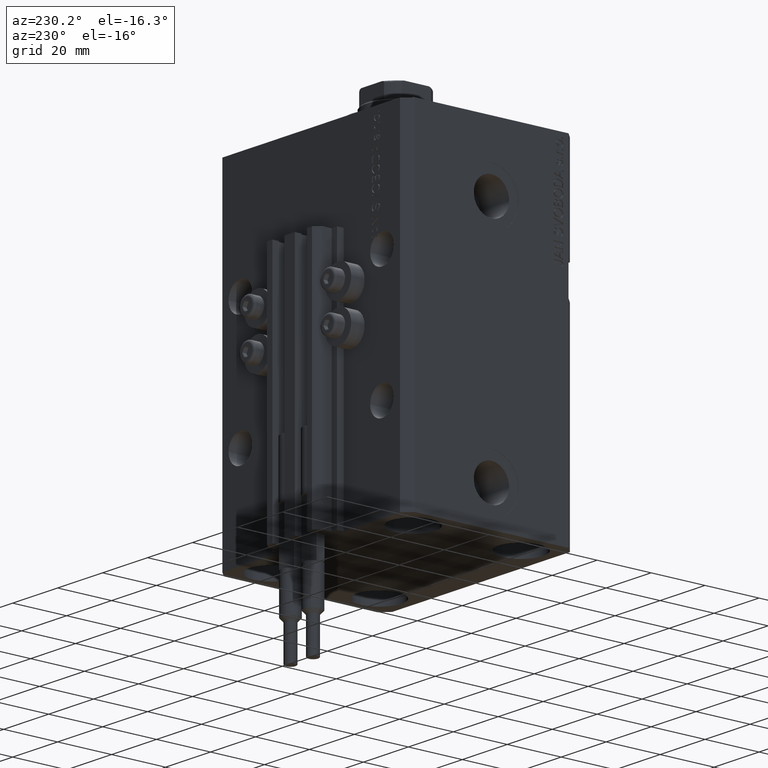
[diagram: clean part render]
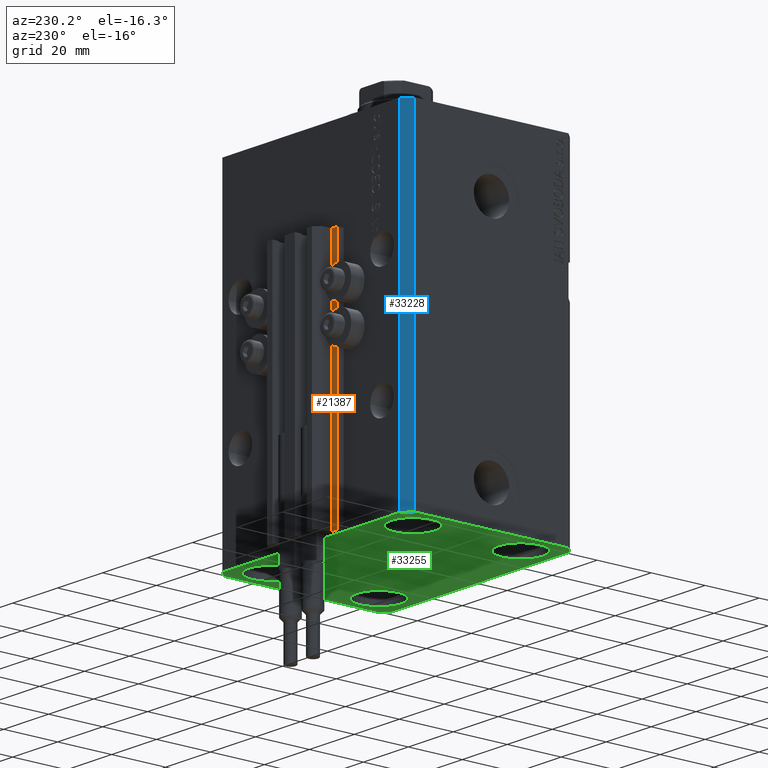
[diagram: same view with three faces highlighted in distinct colors, each labeled with its STEP entity id]
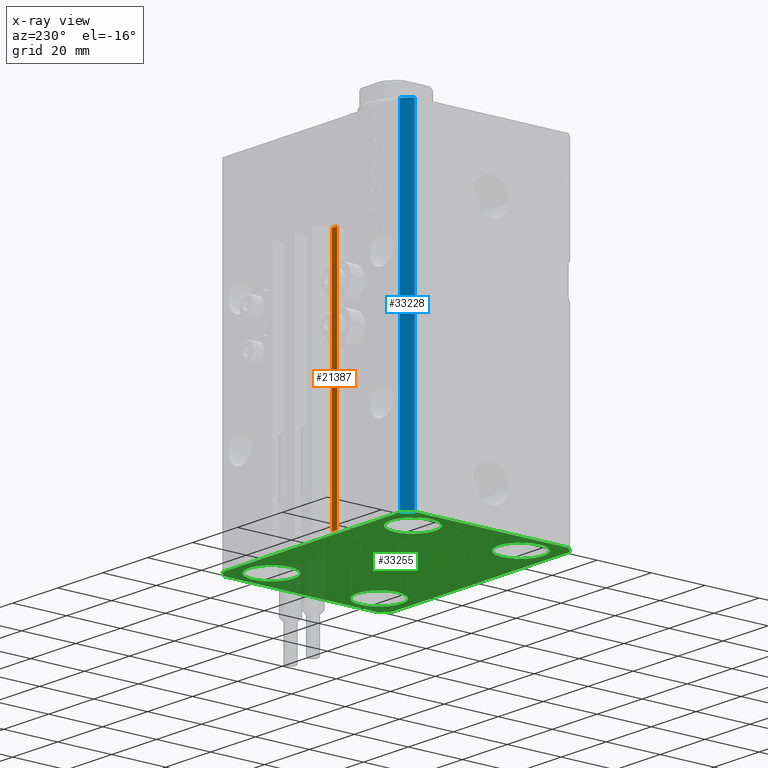
[diagram: x-ray of the same camera — body ghosted, the three highlighted faces saturated]
A machine part, auxiliary view with three faces highlighted in distinct colors.
The next image is the same camera in x-ray (body ghosted, the three faces saturated) — at least one of them is partly hidden behind the body in this view.
Their STEP definitions:

[orange] entity #21387 — the highlighted planar face has unit normal (0, 1, 0).
#175 = VERTEX_POINT ( 'NONE', #34948 ) ;
#1837 = EDGE_CURVE ( 'NONE', #16090, #175, #41770, .T. ) ;
#1938 = PLANE ( 'NONE',  #25567 ) ;
#2292 = EDGE_CURVE ( 'NONE', #23306, #41984, #19715, .T. ) ;
#2499 = ORIENTED_EDGE ( 'NONE', *, *, #2292, .F. ) ;
#4361 = CARTESIAN_POINT ( 'NONE',  ( -12.20000000000000107, 33.99999999999998579, -33.00000000000000000 ) ) ;
#5175 = CARTESIAN_POINT ( 'NONE',  ( -12.20000000000000107, 33.99999999999998579, -33.00000000000000000 ) ) ;
#6557 = LINE ( 'NONE', #9787, #11754 ) ;
#9787 = CARTESIAN_POINT ( 'NONE',  ( -14.50000000000000000, 33.99999999999998579, -123.0000000000000000 ) ) ;
#10140 = EDGE_CURVE ( 'NONE', #175, #41984, #6557, .T. ) ;
#11754 = VECTOR ( 'NONE', #43660, 1000.000000000000000 ) ;
#12622 = CARTESIAN_POINT ( 'NONE',  ( -12.20000000000000107, 33.99999999999998579, -123.0000000000000000 ) ) ;
#16090 = VERTEX_POINT ( 'NONE', #12622 ) ;
#17045 = CARTESIAN_POINT ( 'NONE',  ( -12.20000000000000107, 33.99999999999998579, -123.0000000000000000 ) ) ;
#18900 = ORIENTED_EDGE ( 'NONE', *, *, #1837, .T. ) ;
#19143 = ORIENTED_EDGE ( 'NONE', *, *, #10140, .T. ) ;
#19715 = LINE ( 'NONE', #4361, #21835 ) ;
#20740 = FACE_OUTER_BOUND ( 'NONE', #48741, .T. ) ;
#21221 = DIRECTION ( 'NONE',  ( 0.000000000000000000, 0.000000000000000000, 1.000000000000000000 ) ) ;
#21387 = ADVANCED_FACE ( 'NONE', ( #20740 ), #1938, .T. ) ;
#21835 = VECTOR ( 'NONE', #35036, 1000.000000000000000 ) ;
#22236 = DIRECTION ( 'NONE',  ( -1.000000000000000000, 0.000000000000000000, 0.000000000000000000 ) ) ;
#23306 = VERTEX_POINT ( 'NONE', #5175 ) ;
#25567 = AXIS2_PLACEMENT_3D ( 'NONE', #17045, #47445, #21221 ) ;
#27902 = VECTOR ( 'NONE', #36513, 1000.000000000000000 ) ;
#30682 = EDGE_CURVE ( 'NONE', #16090, #23306, #48138, .T. ) ;
#30865 = CARTESIAN_POINT ( 'NONE',  ( -14.50000000000000000, 33.99999999999998579, -33.00000000000000000 ) ) ;
#33304 = CARTESIAN_POINT ( 'NONE',  ( -12.20000000000000107, 33.99999999999998579, -123.0000000000000000 ) ) ;
#34948 = CARTESIAN_POINT ( 'NONE',  ( -14.50000000000000000, 33.99999999999998579, -123.0000000000000000 ) ) ;
#35036 = DIRECTION ( 'NONE',  ( -1.000000000000000000, 0.000000000000000000, 0.000000000000000000 ) ) ;
#36513 = DIRECTION ( 'NONE',  ( 0.000000000000000000, 0.000000000000000000, 1.000000000000000000 ) ) ;
#37233 = ORIENTED_EDGE ( 'NONE', *, *, #30682, .F. ) ;
#41770 = LINE ( 'NONE', #44751, #45547 ) ;
#41984 = VERTEX_POINT ( 'NONE', #30865 ) ;
#43660 = DIRECTION ( 'NONE',  ( 0.000000000000000000, 0.000000000000000000, 1.000000000000000000 ) ) ;
#44751 = CARTESIAN_POINT ( 'NONE',  ( -12.20000000000000107, 33.99999999999998579, -123.0000000000000000 ) ) ;
#45547 = VECTOR ( 'NONE', #22236, 1000.000000000000000 ) ;
#47445 = DIRECTION ( 'NONE',  ( 0.000000000000000000, 1.000000000000000000, -0.000000000000000000 ) ) ;
#48138 = LINE ( 'NONE', #33304, #27902 ) ;
#48741 = EDGE_LOOP ( 'NONE', ( #2499, #37233, #18900, #19143 ) ) ;

[blue] entity #33228 — the highlighted planar face has unit normal (-0.7071, 0.7071, 0).
#18 = VECTOR ( 'NONE', #8081, 1000.000000000000000 ) ;
#2957 = VERTEX_POINT ( 'NONE', #6198 ) ;
#3219 = DIRECTION ( 'NONE',  ( -0.7071067811865472397, -0.7071067811865479058, 0.000000000000000000 ) ) ;
#4535 = VECTOR ( 'NONE', #24696, 1000.000000000000000 ) ;
#5162 = LINE ( 'NONE', #23962, #4535 ) ;
#6198 = CARTESIAN_POINT ( 'NONE',  ( -42.50000000000000000, 28.50000000000000000, 0.000000000000000000 ) ) ;
#6941 = PLANE ( 'NONE',  #27186 ) ;
#8081 = DIRECTION ( 'NONE',  ( -0.7071067811865471286, -0.7071067811865479058, 0.000000000000000000 ) ) ;
#8192 = LINE ( 'NONE', #19071, #32710 ) ;
#8940 = ORIENTED_EDGE ( 'NONE', *, *, #44019, .F. ) ;
#12512 = VERTEX_POINT ( 'NONE', #46279 ) ;
#14089 = EDGE_CURVE ( 'NONE', #12512, #21358, #46162, .T. ) ;
#14091 = EDGE_CURVE ( 'NONE', #31817, #2957, #45177, .T. ) ;
#17287 = CARTESIAN_POINT ( 'NONE',  ( -42.50000000000000000, 28.50000000000000000, -123.0000000000000000 ) ) ;
#19071 = CARTESIAN_POINT ( 'NONE',  ( -42.50000000000000000, 28.50000000000000000, -123.0000000000000000 ) ) ;
#20564 = VECTOR ( 'NONE', #26868, 1000.000000000000000 ) ;
#21358 = VERTEX_POINT ( 'NONE', #17287 ) ;
#21368 = CARTESIAN_POINT ( 'NONE',  ( -39.50000000000000711, 31.50000000000000000, 0.000000000000000000 ) ) ;
#22500 = FACE_OUTER_BOUND ( 'NONE', #31369, .T. ) ;
#23154 = CARTESIAN_POINT ( 'NONE',  ( -39.50000000000000711, 31.50000000000000000, 0.000000000000000000 ) ) ;
#23962 = CARTESIAN_POINT ( 'NONE',  ( -39.50000000000000711, 31.50000000000000000, -123.0000000000000000 ) ) ;
#24696 = DIRECTION ( 'NONE',  ( 0.000000000000000000, 0.000000000000000000, 1.000000000000000000 ) ) ;
#26868 = DIRECTION ( 'NONE',  ( -0.7071067811865471286, -0.7071067811865479058, 0.000000000000000000 ) ) ;
#27186 = AXIS2_PLACEMENT_3D ( 'NONE', #48492, #33415, #3219 ) ;
#31089 = EDGE_CURVE ( 'NONE', #21358, #2957, #8192, .T. ) ;
#31369 = EDGE_LOOP ( 'NONE', ( #43750, #8940, #40233, #32630 ) ) ;
#31817 = VERTEX_POINT ( 'NONE', #21368 ) ;
#32630 = ORIENTED_EDGE ( 'NONE', *, *, #31089, .T. ) ;
#32710 = VECTOR ( 'NONE', #38840, 1000.000000000000000 ) ;
#33228 = ADVANCED_FACE ( 'NONE', ( #22500 ), #6941, .T. ) ;
#33415 = DIRECTION ( 'NONE',  ( -0.7071067811865479058, 0.7071067811865472397, 0.000000000000000000 ) ) ;
#38840 = DIRECTION ( 'NONE',  ( 0.000000000000000000, 0.000000000000000000, 1.000000000000000000 ) ) ;
#40233 = ORIENTED_EDGE ( 'NONE', *, *, #14089, .T. ) ;
#43750 = ORIENTED_EDGE ( 'NONE', *, *, #14091, .F. ) ;
#44019 = EDGE_CURVE ( 'NONE', #12512, #31817, #5162, .T. ) ;
#45177 = LINE ( 'NONE', #23154, #20564 ) ;
#45666 = CARTESIAN_POINT ( 'NONE',  ( -39.50000000000000711, 31.50000000000000000, -123.0000000000000000 ) ) ;
#46162 = LINE ( 'NONE', #45666, #18 ) ;
#46279 = CARTESIAN_POINT ( 'NONE',  ( -39.50000000000000711, 31.50000000000000000, -123.0000000000000000 ) ) ;
#48492 = CARTESIAN_POINT ( 'NONE',  ( -39.50000000000000711, 31.50000000000000000, -123.0000000000000000 ) ) ;

[green] entity #33255 — the highlighted planar face has unit normal (0, 0, 1).
#18 = VECTOR ( 'NONE', #8081, 1000.000000000000000 ) ;
#596 = CARTESIAN_POINT ( 'NONE',  ( -31.50000000000000000, 20.00000000000000000, -123.0000000000000000 ) ) ;
#1511 = EDGE_CURVE ( 'NONE', #16458, #25079, #34460, .T. ) ;
#1566 = CARTESIAN_POINT ( 'NONE',  ( -31.50000000000000000, 20.00000000000000000, -123.0000000000000000 ) ) ;
#2012 = CARTESIAN_POINT ( 'NONE',  ( -39.75000000000000000, -20.00000000000000000, -123.0000000000000000 ) ) ;
#2696 = EDGE_CURVE ( 'NONE', #35685, #17717, #32948, .T. ) ;
#2762 = ORIENTED_EDGE ( 'NONE', *, *, #14089, .F. ) ;
#2950 = VECTOR ( 'NONE', #7725, 1000.000000000000000 ) ;
#3118 = EDGE_LOOP ( 'NONE', ( #21839, #4889 ) ) ;
#4323 = CARTESIAN_POINT ( 'NONE',  ( 31.50000000000000000, -20.00000000000000000, -123.0000000000000000 ) ) ;
#4399 = EDGE_CURVE ( 'NONE', #14215, #11895, #40200, .T. ) ;
#4889 = ORIENTED_EDGE ( 'NONE', *, *, #2696, .T. ) ;
#5513 = ORIENTED_EDGE ( 'NONE', *, *, #22171, .T. ) ;
#5802 = CARTESIAN_POINT ( 'NONE',  ( -31.50000000000000000, -20.00000000000000000, -123.0000000000000000 ) ) ;
#6477 = EDGE_CURVE ( 'NONE', #24065, #14215, #36447, .T. ) ;
#6526 = DIRECTION ( 'NONE',  ( 0.7071067811865483499, 0.7071067811865466846, 0.000000000000000000 ) ) ;
#6552 = CARTESIAN_POINT ( 'NONE',  ( 31.50000000000000000, 20.00000000000001066, -123.0000000000000000 ) ) ;
#6623 = CARTESIAN_POINT ( 'NONE',  ( -39.50000000000000711, -31.50000000000000000, -123.0000000000000000 ) ) ;
#7250 = CARTESIAN_POINT ( 'NONE',  ( 42.50000000000051870, 28.49999999999995381, -123.0000000000000000 ) ) ;
#7335 = EDGE_CURVE ( 'NONE', #25079, #16458, #43351, .T. ) ;
#7725 = DIRECTION ( 'NONE',  ( 8.886653596232072440E-15, 1.000000000000000000, 0.000000000000000000 ) ) ;
#8081 = DIRECTION ( 'NONE',  ( -0.7071067811865471286, -0.7071067811865479058, 0.000000000000000000 ) ) ;
#8831 = EDGE_CURVE ( 'NONE', #17717, #35685, #41040, .T. ) ;
#9195 = CARTESIAN_POINT ( 'NONE',  ( -39.50000000000000711, -31.50000000000000000, -123.0000000000000000 ) ) ;
#9731 = DIRECTION ( 'NONE',  ( 1.000000000000000000, 0.000000000000000000, 0.000000000000000000 ) ) ;
#10448 = VERTEX_POINT ( 'NONE', #17807 ) ;
#10662 = DIRECTION ( 'NONE',  ( 1.000000000000000000, 0.000000000000000000, -0.000000000000000000 ) ) ;
#11643 = PLANE ( 'NONE',  #28767 ) ;
#11895 = VERTEX_POINT ( 'NONE', #29074 ) ;
#12017 = CARTESIAN_POINT ( 'NONE',  ( 39.50000000000000711, -31.50000000000000000, -123.0000000000000000 ) ) ;
#12176 = CARTESIAN_POINT ( 'NONE',  ( 39.74999999999999289, -20.00000000000000000, -123.0000000000000000 ) ) ;
#12298 = EDGE_CURVE ( 'NONE', #21358, #46213, #44021, .T. ) ;
#12329 = EDGE_LOOP ( 'NONE', ( #36120, #36456 ) ) ;
#12512 = VERTEX_POINT ( 'NONE', #46279 ) ;
#13304 = AXIS2_PLACEMENT_3D ( 'NONE', #596, #41915, #35226 ) ;
#14089 = EDGE_CURVE ( 'NONE', #12512, #21358, #46162, .T. ) ;
#14215 = VERTEX_POINT ( 'NONE', #47849 ) ;
#14377 = CARTESIAN_POINT ( 'NONE',  ( -23.25000000000000000, 20.00000000000000000, -123.0000000000000000 ) ) ;
#14398 = VERTEX_POINT ( 'NONE', #34727 ) ;
#14608 = FACE_BOUND ( 'NONE', #12329, .T. ) ;
#14672 = DIRECTION ( 'NONE',  ( -0.7071067811865356934, 0.7071067811865594521, 0.000000000000000000 ) ) ;
#14894 = VERTEX_POINT ( 'NONE', #6623 ) ;
#15693 = VERTEX_POINT ( 'NONE', #2012 ) ;
#16390 = ORIENTED_EDGE ( 'NONE', *, *, #4399, .F. ) ;
#16458 = VERTEX_POINT ( 'NONE', #28734 ) ;
#16856 = DIRECTION ( 'NONE',  ( -1.000000000000000000, 0.000000000000000000, 0.000000000000000000 ) ) ;
#17287 = CARTESIAN_POINT ( 'NONE',  ( -42.50000000000000000, 28.50000000000000000, -123.0000000000000000 ) ) ;
#17717 = VERTEX_POINT ( 'NONE', #45730 ) ;
#17807 = CARTESIAN_POINT ( 'NONE',  ( 39.50000000000056843, 31.50000000000000000, -123.0000000000000000 ) ) ;
#18070 = FACE_BOUND ( 'NONE', #3118, .T. ) ;
#18351 = ORIENTED_EDGE ( 'NONE', *, *, #43064, .T. ) ;
#19077 = CIRCLE ( 'NONE', #19890, 8.250000000000000000 ) ;
#19283 = DIRECTION ( 'NONE',  ( 1.000000000000000000, 0.000000000000000000, 0.000000000000000000 ) ) ;
#19427 = DIRECTION ( 'NONE',  ( -0.000000000000000000, -0.000000000000000000, 1.000000000000000000 ) ) ;
#19668 = AXIS2_PLACEMENT_3D ( 'NONE', #33399, #48969, #19283 ) ;
#19890 = AXIS2_PLACEMENT_3D ( 'NONE', #5802, #32038, #48091 ) ;
#20398 = AXIS2_PLACEMENT_3D ( 'NONE', #39974, #40937, #25370 ) ;
#20923 = VERTEX_POINT ( 'NONE', #12176 ) ;
#21276 = CARTESIAN_POINT ( 'NONE',  ( 39.50000000000056843, 31.50000000000000000, -123.0000000000000000 ) ) ;
#21358 = VERTEX_POINT ( 'NONE', #17287 ) ;
#21648 = ORIENTED_EDGE ( 'NONE', *, *, #25679, .T. ) ;
#21839 = ORIENTED_EDGE ( 'NONE', *, *, #8831, .T. ) ;
#22004 = EDGE_CURVE ( 'NONE', #14894, #24065, #27253, .T. ) ;
#22171 = EDGE_CURVE ( 'NONE', #23969, #15693, #38112, .T. ) ;
#22726 = EDGE_LOOP ( 'NONE', ( #34205, #47659, #16390, #35546, #26989, #37880, #44808, #2762 ) ) ;
#23969 = VERTEX_POINT ( 'NONE', #29582 ) ;
#24065 = VERTEX_POINT ( 'NONE', #12017 ) ;
#24990 = LINE ( 'NONE', #21276, #28941 ) ;
#25001 = DIRECTION ( 'NONE',  ( -0.000000000000000000, -0.000000000000000000, 1.000000000000000000 ) ) ;
#25079 = VERTEX_POINT ( 'NONE', #25809 ) ;
#25339 = DIRECTION ( 'NONE',  ( 1.000000000000000000, 0.000000000000000000, 0.000000000000000000 ) ) ;
#25370 = DIRECTION ( 'NONE',  ( 1.000000000000000000, 0.000000000000000000, 0.000000000000000000 ) ) ;
#25479 = DIRECTION ( 'NONE',  ( 1.000000000000000000, 0.000000000000000000, 0.000000000000000000 ) ) ;
#25545 = EDGE_LOOP ( 'NONE', ( #18351, #36326 ) ) ;
#25679 = EDGE_CURVE ( 'NONE', #15693, #23969, #19077, .T. ) ;
#25809 = CARTESIAN_POINT ( 'NONE',  ( 23.25000000000000355, 20.00000000000001066, -123.0000000000000000 ) ) ;
#26264 = VECTOR ( 'NONE', #39076, 1000.000000000000000 ) ;
#26989 = ORIENTED_EDGE ( 'NONE', *, *, #22004, .F. ) ;
#27253 = LINE ( 'NONE', #9195, #36517 ) ;
#28050 = EDGE_CURVE ( 'NONE', #46213, #14894, #43030, .T. ) ;
#28190 = CARTESIAN_POINT ( 'NONE',  ( -42.50000000000000000, -28.50000000000000000, -123.0000000000000000 ) ) ;
#28463 = CARTESIAN_POINT ( 'NONE',  ( -31.50000000000000000, -20.00000000000000000, -123.0000000000000000 ) ) ;
#28734 = CARTESIAN_POINT ( 'NONE',  ( 39.74999999999999289, 20.00000000000001066, -123.0000000000000000 ) ) ;
#28767 = AXIS2_PLACEMENT_3D ( 'NONE', #45517, #41060, #10662 ) ;
#28941 = VECTOR ( 'NONE', #16856, 1000.000000000000000 ) ;
#29074 = CARTESIAN_POINT ( 'NONE',  ( 42.50000000000051870, 28.49999999999995381, -123.0000000000000000 ) ) ;
#29582 = CARTESIAN_POINT ( 'NONE',  ( -23.25000000000000000, -20.00000000000000000, -123.0000000000000000 ) ) ;
#29788 = CIRCLE ( 'NONE', #38479, 8.249999999999992895 ) ;
#29913 = EDGE_LOOP ( 'NONE', ( #21648, #5513 ) ) ;
#31756 = DIRECTION ( 'NONE',  ( -0.000000000000000000, -0.000000000000000000, 1.000000000000000000 ) ) ;
#32038 = DIRECTION ( 'NONE',  ( -0.000000000000000000, -0.000000000000000000, 1.000000000000000000 ) ) ;
#32948 = CIRCLE ( 'NONE', #38481, 8.250000000000000000 ) ;
#33255 = ADVANCED_FACE ( 'NONE', ( #34145, #40814, #14608, #18070, #45025 ), #11643, .F. ) ;
#33390 = AXIS2_PLACEMENT_3D ( 'NONE', #28463, #25001, #25479 ) ;
#33399 = CARTESIAN_POINT ( 'NONE',  ( 31.50000000000000000, 20.00000000000001066, -123.0000000000000000 ) ) ;
#34000 = EDGE_CURVE ( 'NONE', #11895, #10448, #38151, .T. ) ;
#34145 = FACE_BOUND ( 'NONE', #29913, .T. ) ;
#34205 = ORIENTED_EDGE ( 'NONE', *, *, #40440, .F. ) ;
#34460 = CIRCLE ( 'NONE', #35998, 8.249999999999992895 ) ;
#34510 = DIRECTION ( 'NONE',  ( 1.000000000000000000, 0.000000000000000000, 0.000000000000000000 ) ) ;
#34727 = CARTESIAN_POINT ( 'NONE',  ( 23.25000000000000355, -20.00000000000000000, -123.0000000000000000 ) ) ;
#35226 = DIRECTION ( 'NONE',  ( 1.000000000000000000, 0.000000000000000000, 0.000000000000000000 ) ) ;
#35546 = ORIENTED_EDGE ( 'NONE', *, *, #6477, .F. ) ;
#35685 = VERTEX_POINT ( 'NONE', #14377 ) ;
#35998 = AXIS2_PLACEMENT_3D ( 'NONE', #6552, #48828, #25339 ) ;
#36120 = ORIENTED_EDGE ( 'NONE', *, *, #7335, .T. ) ;
#36180 = CARTESIAN_POINT ( 'NONE',  ( -42.50000000000000000, -28.50000000000000000, -123.0000000000000000 ) ) ;
#36326 = ORIENTED_EDGE ( 'NONE', *, *, #45397, .T. ) ;
#36447 = LINE ( 'NONE', #48801, #46472 ) ;
#36456 = ORIENTED_EDGE ( 'NONE', *, *, #1511, .T. ) ;
#36486 = CARTESIAN_POINT ( 'NONE',  ( 42.50000000000000711, -28.50000000000000355, -123.0000000000000000 ) ) ;
#36517 = VECTOR ( 'NONE', #39601, 1000.000000000000000 ) ;
#37880 = ORIENTED_EDGE ( 'NONE', *, *, #28050, .F. ) ;
#38112 = CIRCLE ( 'NONE', #33390, 8.250000000000000000 ) ;
#38151 = LINE ( 'NONE', #7250, #46191 ) ;
#38479 = AXIS2_PLACEMENT_3D ( 'NONE', #4323, #19427, #34510 ) ;
#38481 = AXIS2_PLACEMENT_3D ( 'NONE', #1566, #31756, #9731 ) ;
#39076 = DIRECTION ( 'NONE',  ( 0.7071067811865471286, -0.7071067811865479058, 0.000000000000000000 ) ) ;
#39601 = DIRECTION ( 'NONE',  ( 1.000000000000000000, 0.000000000000000000, 0.000000000000000000 ) ) ;
#39974 = CARTESIAN_POINT ( 'NONE',  ( 31.50000000000000000, -20.00000000000000000, -123.0000000000000000 ) ) ;
#40072 = CARTESIAN_POINT ( 'NONE',  ( -42.50000000000000000, 28.50000000000000000, -123.0000000000000000 ) ) ;
#40200 = LINE ( 'NONE', #36486, #2950 ) ;
#40440 = EDGE_CURVE ( 'NONE', #10448, #12512, #24990, .T. ) ;
#40814 = FACE_BOUND ( 'NONE', #25545, .T. ) ;
#40937 = DIRECTION ( 'NONE',  ( -0.000000000000000000, -0.000000000000000000, 1.000000000000000000 ) ) ;
#41040 = CIRCLE ( 'NONE', #13304, 8.250000000000000000 ) ;
#41060 = DIRECTION ( 'NONE',  ( 0.000000000000000000, 0.000000000000000000, 1.000000000000000000 ) ) ;
#41915 = DIRECTION ( 'NONE',  ( -0.000000000000000000, -0.000000000000000000, 1.000000000000000000 ) ) ;
#43030 = LINE ( 'NONE', #28190, #26264 ) ;
#43064 = EDGE_CURVE ( 'NONE', #14398, #20923, #29788, .T. ) ;
#43351 = CIRCLE ( 'NONE', #19668, 8.249999999999992895 ) ;
#43781 = DIRECTION ( 'NONE',  ( 0.000000000000000000, -1.000000000000000000, 0.000000000000000000 ) ) ;
#44021 = LINE ( 'NONE', #40072, #48928 ) ;
#44808 = ORIENTED_EDGE ( 'NONE', *, *, #12298, .F. ) ;
#45025 = FACE_OUTER_BOUND ( 'NONE', #22726, .T. ) ;
#45397 = EDGE_CURVE ( 'NONE', #20923, #14398, #47230, .T. ) ;
#45517 = CARTESIAN_POINT ( 'NONE',  ( 0.000000000000000000, 0.000000000000000000, -123.0000000000000000 ) ) ;
#45666 = CARTESIAN_POINT ( 'NONE',  ( -39.50000000000000711, 31.50000000000000000, -123.0000000000000000 ) ) ;
#45730 = CARTESIAN_POINT ( 'NONE',  ( -39.75000000000000000, 20.00000000000000000, -123.0000000000000000 ) ) ;
#46162 = LINE ( 'NONE', #45666, #18 ) ;
#46191 = VECTOR ( 'NONE', #14672, 1000.000000000000114 ) ;
#46213 = VERTEX_POINT ( 'NONE', #36180 ) ;
#46279 = CARTESIAN_POINT ( 'NONE',  ( -39.50000000000000711, 31.50000000000000000, -123.0000000000000000 ) ) ;
#46472 = VECTOR ( 'NONE', #6526, 1000.000000000000000 ) ;
#47230 = CIRCLE ( 'NONE', #20398, 8.249999999999992895 ) ;
#47659 = ORIENTED_EDGE ( 'NONE', *, *, #34000, .F. ) ;
#47849 = CARTESIAN_POINT ( 'NONE',  ( 42.50000000000000711, -28.50000000000000355, -123.0000000000000000 ) ) ;
#48091 = DIRECTION ( 'NONE',  ( 1.000000000000000000, 0.000000000000000000, 0.000000000000000000 ) ) ;
#48801 = CARTESIAN_POINT ( 'NONE',  ( 39.50000000000000711, -31.50000000000000000, -123.0000000000000000 ) ) ;
#48828 = DIRECTION ( 'NONE',  ( -0.000000000000000000, -0.000000000000000000, 1.000000000000000000 ) ) ;
#48928 = VECTOR ( 'NONE', #43781, 1000.000000000000000 ) ;
#48969 = DIRECTION ( 'NONE',  ( -0.000000000000000000, -0.000000000000000000, 1.000000000000000000 ) ) ;